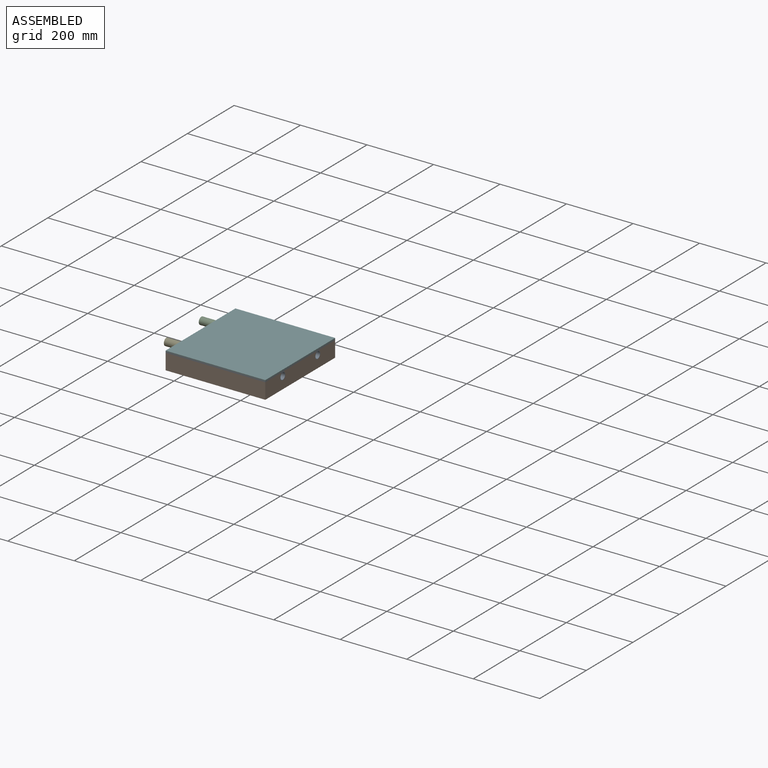
[diagram: assembled view]
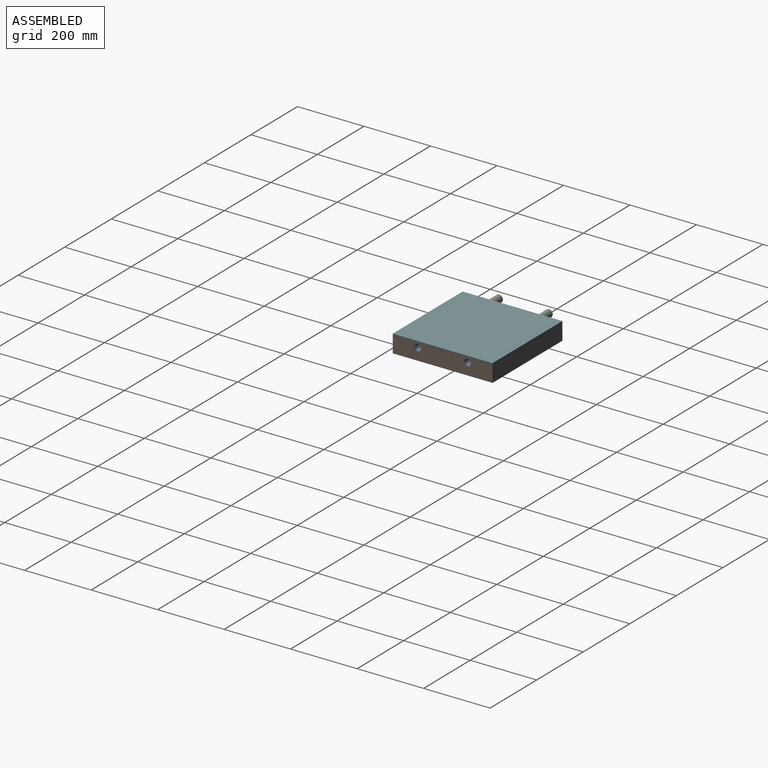
[diagram: assembled view, second angle]
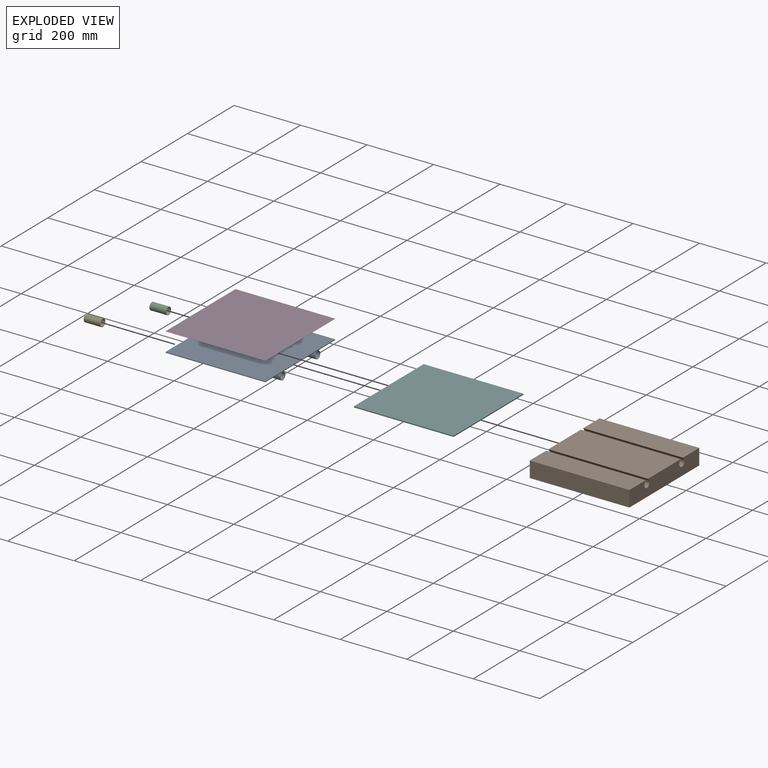
[diagram: exploded view]
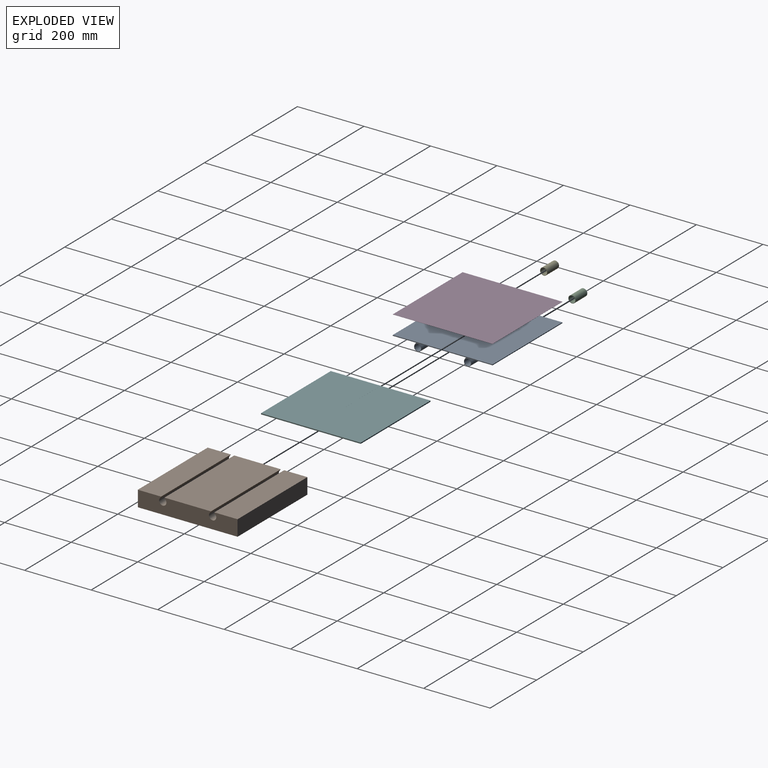
[diagram: exploded view, second angle]
ASSEMBLY  parts=6 mates=17
PART A: 16 faces, bbox 300x300x25.4 mm
  f0: plane 300x5.66mm, normal (0,0.82,0.58), area 2078.5mm2, adj f1,f13,f14,f15
  f1: plane 300x70mm, normal (0,0,-1), area 21000mm2, adj f0,f2,f14,f15
  f2: plane 300x2.4mm, normal (0,1,0), area 720mm2, adj f1,f3,f14,f15
  f3: plane 300x300mm, normal (0,0,1), area 90000mm2, adj f2,f4,f14,f15
  f4: plane 300x2.4mm, normal (0,-1,0), area 720mm2, adj f3,f5,f14,f15
  f5: plane 300x70mm, normal (0,0,-1), area 21000mm2, adj f4,f6,f14,f15
  f6: plane 300x5.66mm, normal (0,-0.82,0.58), area 2078.5mm2, adj f5,f7,f14,f15
  f7: cylinder r=11mm len=300mm, axis (-1,0,0), area 14419.2mm2, adj f6,f8,f14,f15
  f8: plane 300x5.66mm, normal (0,0.82,0.58), area 2078.5mm2, adj f7,f9,f14,f15
  f9: plane 300x140mm, normal (0,0,-1), area 42000mm2, adj f8,f10,f14,f15
  f10: plane 300x5.66mm, normal (0,-0.82,0.58), area 2078.5mm2, adj f9,f13,f14,f15
  f11: cylinder r=9.8mm len=300mm, axis (-1,0,0), area 18472.6mm2, adj f14,f15
  f12: cylinder r=9.8mm len=300mm, axis (-1,0,0), area 18472.6mm2, adj f14,f15
  f13: cylinder r=11mm len=300mm, axis (-1,0,0), area 14419.2mm2, adj f0,f10,f14,f15
  f14: plane 300x25.4mm, normal (1,0,0), area 917.7mm2, adj f0,f1,f2,f3,f4,f5,f6,f7
  f15: plane 300x25.4mm, normal (-1,0,0), area 917.7mm2, adj f0,f1,f2,f3,f4,f5,f6,f7
PART B: 14 faces, bbox 300x300x47.6 mm
  f0: cylinder r=11mm len=300mm, axis (-1,0,0), area 14419.2mm2, adj f1,f11,f12,f13
  f1: plane 300x5.66mm, normal (0,0.82,-0.58), area 2078.5mm2, adj f0,f2,f12,f13
  f2: plane 300x70mm, normal (0,0,1), area 21000mm2, adj f1,f3,f12,f13
  f3: plane 300x47.6mm, normal (0,-1,0), area 14280mm2, adj f2,f4,f12,f13
  f4: plane 300x300mm, normal (0,0,-1), area 90000mm2, adj f3,f5,f12,f13
  f5: plane 300x47.6mm, normal (0,1,0), area 14280mm2, adj f4,f6,f12,f13
  f6: plane 300x70mm, normal (0,0,1), area 21000mm2, adj f5,f7,f12,f13
  f7: plane 300x5.66mm, normal (0,-0.82,-0.58), area 2078.5mm2, adj f6,f8,f12,f13
  f8: cylinder r=11mm len=300mm, axis (-1,0,0), area 14419.2mm2, adj f7,f9,f12,f13
  f9: plane 300x5.66mm, normal (0,0.82,-0.58), area 2078.5mm2, adj f8,f10,f12,f13
  f10: plane 300x140mm, normal (0,0,1), area 42000mm2, adj f9,f11,f12,f13
  f11: plane 300x5.66mm, normal (0,-0.82,-0.58), area 2078.5mm2, adj f0,f10,f12,f13
  f12: plane 300x47.6mm, normal (1,0,0), area 13478.9mm2, adj f0,f1,f2,f3,f4,f5,f6,f7
  f13: plane 300x47.6mm, normal (-1,0,0), area 13478.9mm2, adj f0,f1,f2,f3,f4,f5,f6,f7
PART C: 4 faces, bbox 50x22x22 mm
  f0: cylinder r=9.8mm len=50mm, axis (-1,0,0), area 3078.8mm2, adj f2,f3
  f1: cylinder r=11mm len=50mm, axis (-1,0,0), area 3455.8mm2, adj f2,f3
  f2: plane 22x22mm, normal (1,0,0), area 78.4mm2, adj f0,f1
  f3: plane 22x22mm, normal (-1,0,0), area 78.4mm2, adj f0,f1
PART D: 6 faces, bbox 300x300x0.4 mm
  f0: plane 300x300mm, normal (0,0,1), area 90000mm2, adj f1,f3,f4,f5
  f1: plane 300x0.4mm, normal (-1,0,0), area 120mm2, adj f0,f2,f4,f5
  f2: plane 300x300mm, normal (0,0,-1), area 90000mm2, adj f1,f3,f4,f5
  f3: plane 300x0.4mm, normal (1,0,0), area 120mm2, adj f0,f2,f4,f5
  f4: plane 300x0.4mm, normal (0,-1,0), area 120mm2, adj f0,f1,f2,f3
  f5: plane 300x0.4mm, normal (0,1,0), area 120mm2, adj f0,f1,f2,f3
PART E: same geometry as C
PART F: 6 faces, bbox 300x300x3.2 mm
  f0: plane 300x300mm, normal (0,0,1), area 90000mm2, adj f1,f3,f4,f5
  f1: plane 300x3.2mm, normal (-1,0,0), area 960mm2, adj f0,f2,f4,f5
  f2: plane 300x300mm, normal (0,0,-1), area 90000mm2, adj f1,f3,f4,f5
  f3: plane 300x3.2mm, normal (1,0,0), area 960mm2, adj f0,f2,f4,f5
  f4: plane 300x3.2mm, normal (0,-1,0), area 960mm2, adj f0,f1,f2,f3
  f5: plane 300x3.2mm, normal (0,1,0), area 960mm2, adj f0,f1,f2,f3
PLACE A rot(axis=(0,0,-1),0deg) t=(-93.97,376.26,158.78)mm
PLACE B rot(axis=(0,0,-1),0deg) t=(-93.97,376.26,161.18)mm
PLACE C rot(axis=(0,0,-1),0deg) t=(-268.97,451.26,146.78)mm
PLACE D rot(axis=(0,0,-1),0deg) t=(-93.97,376.26,161.18)mm
PLACE E t=(-268.97,301.26,146.78)mm
PLACE F rot(axis=(0,0,-1),0deg) t=(-93.97,376.26,161.58)mm
MATE parallel A.f3 <-> D.f2  axis (0,0,1) through (-93.97,376.26,161.18)mm
MATE cylindrical C.f0 <-> A.f12  axis (-1,0,0) through (-293.97,451.26,146.78)mm
MATE parallel F.f2 <-> D.f0  axis (0,0,-1) through (-93.97,376.26,161.58)mm
MATE planar F.f2 <-> D.f0  axis (0,0,-1) through (-93.97,376.26,161.58)mm
MATE planar D.f2 <-> A.f3  axis (0,0,-1) through (-93.97,376.26,161.18)mm
MATE parallel F.f3 <-> A.f14  axis (1,0,0) through (56.03,376.26,163.18)mm
MATE parallel D.f3 <-> F.f3  axis (1,0,0) through (56.03,376.26,161.38)mm
MATE planar D.f5 <-> F.f5  axis (0,1,0) through (-93.97,526.26,161.38)mm
MATE parallel F.f4 <-> D.f4  axis (0,-1,0) through (-93.97,226.26,163.18)mm
MATE planar F.f3 <-> A.f14  axis (1,0,0) through (56.03,376.26,163.18)mm
MATE planar C.f0 <-> B.f13  axis (1,0,0) through (-243.97,451.26,146.78)mm
MATE slider A.f12 <-> B.f8  axis (-1,0,0) through (-93.97,451.26,146.78)mm
MATE planar A.f15 <-> B.f13  axis (-1,0,0) through (-243.97,376.26,157.62)mm
MATE planar E.f1 <-> B.f13  axis (1,0,0) through (-243.97,301.26,146.78)mm
MATE planar F.f3 <-> D.f3  axis (1,0,0) through (56.03,376.26,163.18)mm
MATE planar D.f5 <-> A.f2  axis (0,1,0) through (-93.97,526.26,161.38)mm
MATE cylindrical E.f0 <-> A.f7  axis (-1,0,0) through (-293.97,301.26,146.78)mm
